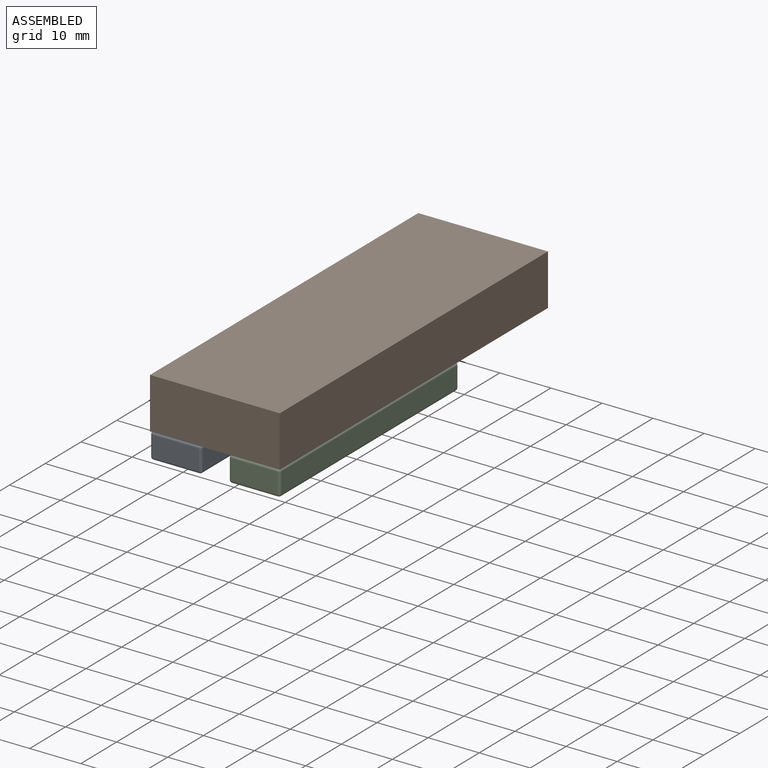
[diagram: assembled view]
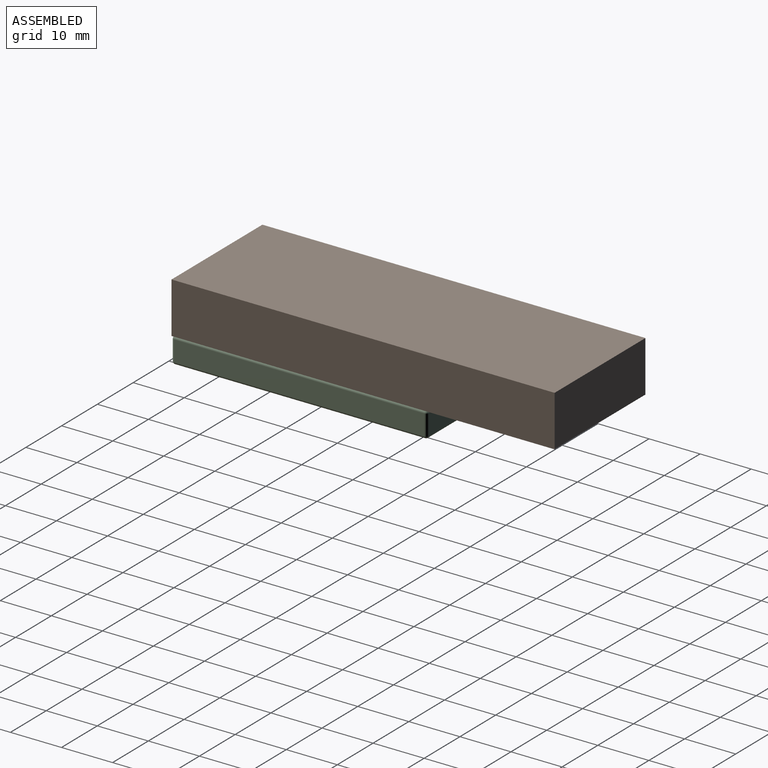
[diagram: assembled view, second angle]
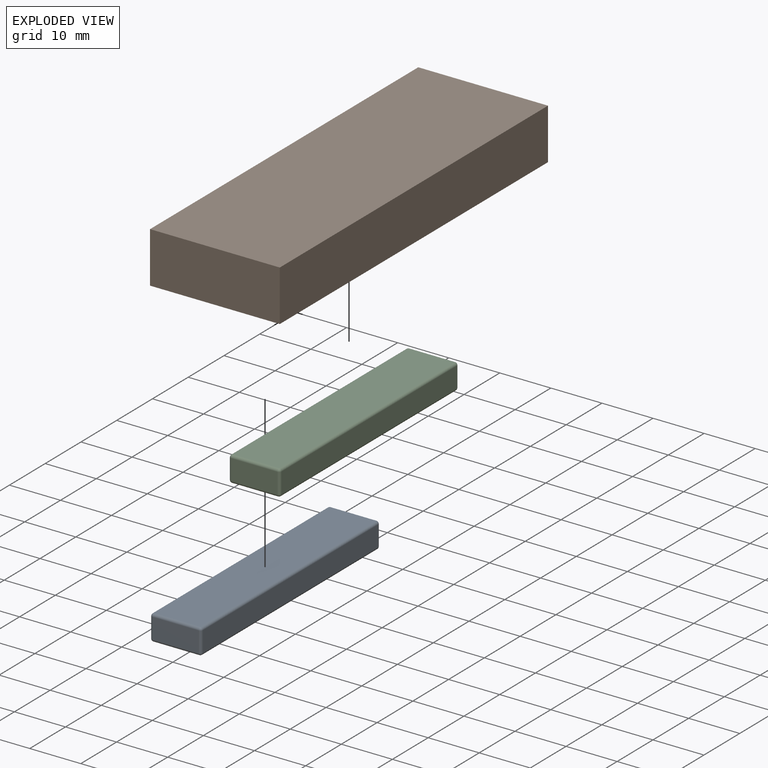
[diagram: exploded view]
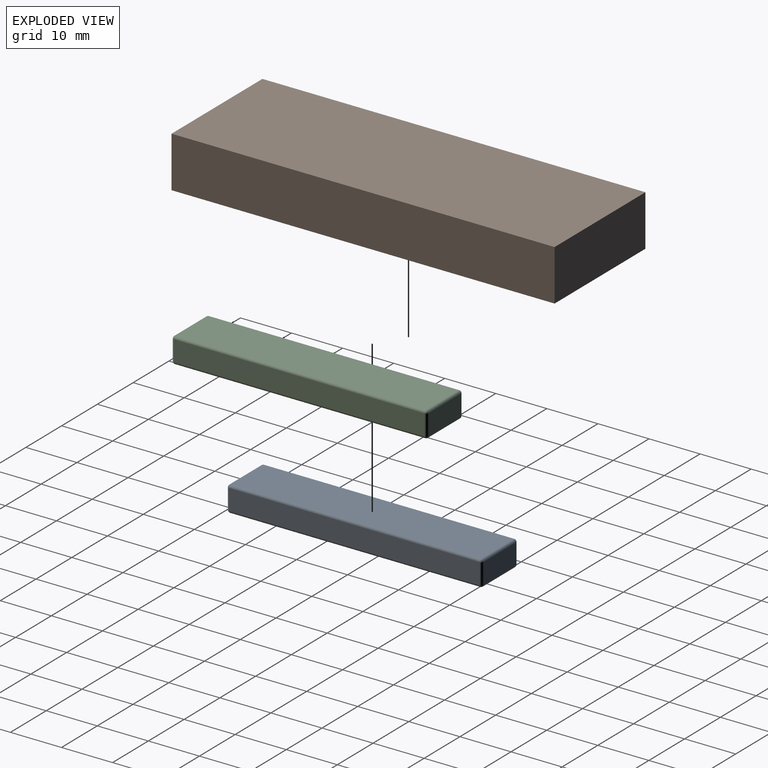
[diagram: exploded view, second angle]
ASSEMBLY  parts=3 mates=6
PART A: 26 faces, bbox 10x50x5 mm
  f0: plane 49x9mm, normal (0,0,1), area 441mm2, adj f14,f19,f22,f25
  f1: plane 49x4mm, normal (-1,0,0), area 196mm2, adj f11,f20,f21,f25
  f2: plane 49x9mm, normal (0,0,-1), area 441mm2, adj f6,f10,f11,f12
  f3: plane 49x4mm, normal (1,0,0), area 196mm2, adj f6,f9,f13,f14
  f4: plane 9x4mm, normal (0,-1,0), area 36mm2, adj f9,f10,f19,f20
  f5: plane 9x4mm, normal (0,1,0), area 36mm2, adj f12,f13,f21,f22
  f6: cylinder r=0.5mm len=49mm, axis (0,-1,0), area 38.5mm2, adj f2,f3,f7,f8
  f7: sphere r=0.5mm, area 0.4mm2, adj f6,f9,f10
  f8: sphere r=0.5mm, area 0.4mm2, adj f6,f12,f13
  f9: cylinder r=0.5mm len=4mm, axis (0,0,-1), area 3.1mm2, adj f3,f4,f7,f15
  f10: cylinder r=0.5mm len=9mm, axis (-1,0,0), area 7.1mm2, adj f2,f4,f7,f16
  f11: cylinder r=0.5mm len=49mm, axis (0,1,0), area 38.5mm2, adj f1,f2,f16,f17
  f12: cylinder r=0.5mm len=9mm, axis (1,0,0), area 7.1mm2, adj f2,f5,f8,f17
  f13: cylinder r=0.5mm len=4mm, axis (0,0,1), area 3.1mm2, adj f3,f5,f8,f18
  f14: cylinder r=0.5mm len=49mm, axis (0,1,0), area 38.5mm2, adj f0,f3,f15,f18
  f15: sphere r=0.5mm, area 0.4mm2, adj f9,f14,f19
  f16: sphere r=0.5mm, area 0.4mm2, adj f10,f11,f20
  f17: sphere r=0.5mm, area 0.4mm2, adj f11,f12,f21
  f18: sphere r=0.5mm, area 0.4mm2, adj f13,f14,f22
  f19: cylinder r=0.5mm len=9mm, axis (1,0,0), area 7.1mm2, adj f0,f4,f15,f23
  f20: cylinder r=0.5mm len=4mm, axis (0,0,1), area 3.1mm2, adj f1,f4,f16,f23
  f21: cylinder r=0.5mm len=4mm, axis (0,0,-1), area 3.1mm2, adj f1,f5,f17,f24
  f22: cylinder r=0.5mm len=9mm, axis (-1,0,0), area 7.1mm2, adj f0,f5,f18,f24
  f23: sphere r=0.5mm, area 0.4mm2, adj f19,f20,f25
  f24: sphere r=0.5mm, area 0.4mm2, adj f21,f22,f25
  f25: cylinder r=0.5mm len=49mm, axis (0,-1,0), area 38.5mm2, adj f0,f1,f23,f24
PART B: 6 faces, bbox 25.4x75x10 mm
  f0: plane 25.4x10mm, normal (0,1,0), area 254mm2, adj f1,f3,f4,f5
  f1: plane 75x10mm, normal (-1,0,0), area 750mm2, adj f0,f2,f4,f5
  f2: plane 25.4x10mm, normal (0,-1,0), area 254mm2, adj f1,f3,f4,f5
  f3: plane 75x10mm, normal (1,0,0), area 750mm2, adj f0,f2,f4,f5
  f4: plane 75x25.4mm, normal (0,0,1), area 1905mm2, adj f0,f1,f2,f3
  f5: plane 75x25.4mm, normal (0,0,-1), area 1905mm2, adj f0,f1,f2,f3
PART C: same geometry as A
PLACE A t=(-20.96,-12.85,6.41)mm
PLACE B t=(-13.26,-0.35,8.91)mm
PLACE C t=(-5.56,-12.85,6.41)mm
MATE planar A.f0 <-> B.f5  axis (0,0,1) through (-20.96,-12.85,8.91)mm
MATE planar C.f3 <-> B.f3  axis (1,0,0) through (-0.56,-12.85,6.41)mm
MATE planar A.f1 <-> B.f1  axis (-1,0,0) through (-25.96,-12.85,6.41)mm
MATE planar A.f4 <-> B.f2  axis (0,-1,0) through (-20.96,-37.85,6.41)mm
MATE planar B.f2 <-> C.f4  axis (0,-1,0) through (-13.26,-37.85,13.91)mm
MATE planar C.f0 <-> B.f5  axis (0,0,1) through (-5.56,-12.85,8.91)mm
